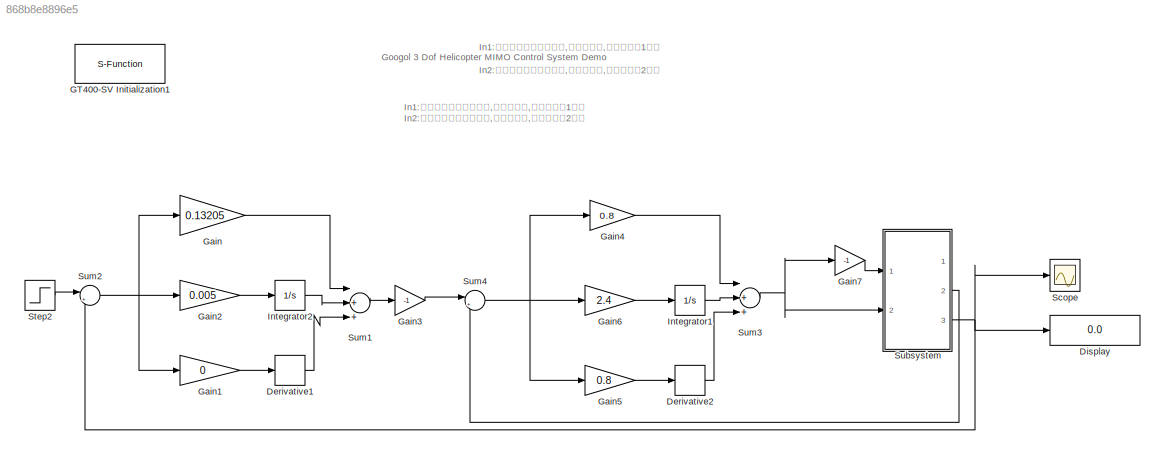
MODEL slx_868b8e8896e5
KIND model
BLOCK [Derivative] Derivative1
BLOCK [Derivative] Derivative2
BLOCK [Display] Display
  Decimation = 1
  Lockdown = off
  Ports = [1]
BLOCK [S-Function] GT400-SV Initialization1
  EnableBusSupport = off
  FunctionName = Initialize
  Parameters = openloop
  Ports = []
  Priority = 0
BLOCK [Gain] Gain
  Gain = 0.13205
  OutDataTypeStr = Inherit: Inherit via internal rule
  ParamDataTypeStr = Inherit: Inherit via internal rule
  SaturateOnIntegerOverflow = off
BLOCK [Gain] Gain1
  Gain = 0
  OutDataTypeStr = Inherit: Inherit via internal rule
  ParamDataTypeStr = Inherit: Inherit via internal rule
  SaturateOnIntegerOverflow = off
BLOCK [Gain] Gain2
  Gain = 0.005
  OutDataTypeStr = Inherit: Inherit via internal rule
  ParamDataTypeStr = Inherit: Inherit via internal rule
  SaturateOnIntegerOverflow = off
BLOCK [Gain] Gain3
  Gain = -1
  OutDataTypeStr = Inherit: Inherit via internal rule
  ParamDataTypeStr = Inherit: Inherit via internal rule
  SaturateOnIntegerOverflow = off
BLOCK [Gain] Gain4
  Gain = 0.8
  OutDataTypeStr = Inherit: Inherit via internal rule
  ParamDataTypeStr = Inherit: Inherit via internal rule
  SaturateOnIntegerOverflow = off
BLOCK [Gain] Gain5
  Gain = 0.8
  OutDataTypeStr = Inherit: Inherit via internal rule
  ParamDataTypeStr = Inherit: Inherit via internal rule
  SaturateOnIntegerOverflow = off
BLOCK [Gain] Gain6
  Gain = 2.4
  OutDataTypeStr = Inherit: Inherit via internal rule
  ParamDataTypeStr = Inherit: Inherit via internal rule
  SaturateOnIntegerOverflow = off
BLOCK [Gain] Gain7
  Gain = -1
  OutDataTypeStr = Inherit: Inherit via internal rule
  ParamDataTypeStr = Inherit: Inherit via internal rule
  SaturateOnIntegerOverflow = off
BLOCK [Integrator] Integrator1
  Ports = [1, 1]
BLOCK [Integrator] Integrator2
  Ports = [1, 1]
BLOCK [Scope] Scope
  DataFormat = StructureWithTime
  Floating = off
  MaxDataPoints = 500000
  NumInputPorts = 1
  Ports = [1]
  SampleTime = 0
  SaveToWorkspace = on
  ShowLegends = off
BLOCK [Step] Step2
  After = 3.14
  SampleTime = 0
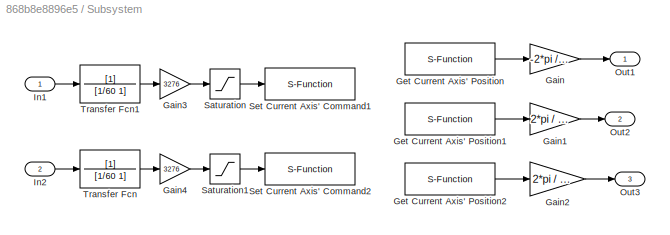
BLOCK [SubSystem] Subsystem
  FunctionWithSeparateData = off
  MaskHideContents = off
  MinAlgLoopOccurrences = off
  Opaque = off
  Ports = [2, 3]
  PropExecContextOutsideSubsystem = off
  RTWSystemCode = Auto
  RequestExecContextInheritance = off
BLOCK [Gain] Subsystem/Gain
  Gain = -2*pi / 2400
BLOCK [Gain] Subsystem/Gain1
  Gain = 2*pi / 2400
BLOCK [Gain] Subsystem/Gain2
  Gain = 2*pi / 2400
BLOCK [Gain] Subsystem/Gain3
  Gain = 3276
  OutDataTypeStr = Inherit: Inherit via internal rule
  ParamDataTypeStr = Inherit: Inherit via internal rule
  SaturateOnIntegerOverflow = off
BLOCK [Gain] Subsystem/Gain4
  Gain = 3276
  OutDataTypeStr = Inherit: Inherit via internal rule
  ParamDataTypeStr = Inherit: Inherit via internal rule
  SaturateOnIntegerOverflow = off
BLOCK [S-Function] Subsystem/Get Current Axis' Position
  EnableBusSupport = off
  FunctionName = GetPos
  Parameters = axis
  Ports = [0, 1]
  Priority = 1
BLOCK [S-Function] Subsystem/Get Current Axis' Position1
  EnableBusSupport = off
  FunctionName = GetPos
  Parameters = axis
  Ports = [0, 1]
  Priority = 1
BLOCK [S-Function] Subsystem/Get Current Axis' Position2
  EnableBusSupport = off
  FunctionName = GetPos
  Parameters = axis
  Ports = [0, 1]
  Priority = 1
BLOCK [Inport] Subsystem/In1
  IconDisplay = Port number
BLOCK [Inport] Subsystem/In2
  IconDisplay = Port number
  Port = 2
BLOCK [Outport] Subsystem/Out1
  IconDisplay = Port number
BLOCK [Outport] Subsystem/Out2
  IconDisplay = Port number
  Port = 2
BLOCK [Outport] Subsystem/Out3
  IconDisplay = Port number
  Port = 3
BLOCK [Saturate] Subsystem/Saturation
  InputPortMap = u0
  LowerLimit = 0
  Ports = [1, 1]
  UpperLimit = 9000
BLOCK [Saturate] Subsystem/Saturation1
  InputPortMap = u0
  LowerLimit = 0
  Ports = [1, 1]
  UpperLimit = 9000
BLOCK [S-Function] Subsystem/Set Current Axis' Command1
  EnableBusSupport = off
  FunctionName = SetMtrCmd
  Parameters = axis
  Ports = [1]
  Priority = 1
BLOCK [S-Function] Subsystem/Set Current Axis' Command2
  EnableBusSupport = off
  FunctionName = SetMtrCmd
  Parameters = axis
  Ports = [1]
  Priority = 1
BLOCK [TransferFcn] Subsystem/Transfer Fcn
  Denominator = [1/60 1]
BLOCK [TransferFcn] Subsystem/Transfer Fcn1
  Denominator = [1/60 1]
BLOCK [Sum] Sum1
  InputSameDT = off
  Inputs = |+++
  OutDataTypeStr = Inherit: Inherit via internal rule
  Ports = [3, 1]
  SaturateOnIntegerOverflow = off
BLOCK [Sum] Sum2
  IconShape = round
  InputSameDT = off
  Inputs = |+-
  OutDataTypeStr = Inherit: Inherit via internal rule
  Ports = [2, 1]
  SaturateOnIntegerOverflow = off
BLOCK [Sum] Sum3
  InputSameDT = off
  Inputs = |+++
  OutDataTypeStr = Inherit: Inherit via internal rule
  Ports = [3, 1]
  SaturateOnIntegerOverflow = off
BLOCK [Sum] Sum4
  IconShape = round
  InputSameDT = off
  Inputs = |+-
  OutDataTypeStr = Inherit: Inherit via internal rule
  Ports = [2, 1]
  SaturateOnIntegerOverflow = off
ANNOTATION (root): Googol 3 Dof Helicopter MIMO Control System Demo
ANNOTATION (root): In1:从机尾往螺旋桨方向看,右侧螺旋桨,对应手册的1号桨 In2:从机尾往螺旋桨方向看,左侧螺旋桨,对应手册的2号桨
LINE Derivative1:1 -> Sum1:3
LINE Derivative2:1 -> Sum3:3
LINE Gain1:1 -> Derivative1:1
LINE Gain2:1 -> Integrator2:1
LINE Gain3:1 -> Sum4:1
LINE Gain4:1 -> Sum3:1
LINE Gain5:1 -> Derivative2:1
LINE Gain6:1 -> Integrator1:1
LINE Gain7:1 -> Subsystem:1
LINE Gain:1 -> Sum1:1
LINE Integrator1:1 -> Sum3:2
LINE Integrator2:1 -> Sum1:2
LINE Step2:1 -> Sum2:1
LINE Subsystem/Gain1:1 -> Subsystem/Out2:1
LINE Subsystem/Gain2:1 -> Subsystem/Out3:1
LINE Subsystem/Gain3:1 -> Subsystem/Saturation:1
LINE Subsystem/Gain4:1 -> Subsystem/Saturation1:1
LINE Subsystem/Gain:1 -> Subsystem/Out1:1
LINE Subsystem/Get Current Axis' Position1:1 -> Subsystem/Gain1:1
LINE Subsystem/Get Current Axis' Position2:1 -> Subsystem/Gain2:1
LINE Subsystem/Get Current Axis' Position:1 -> Subsystem/Gain:1
LINE Subsystem/In1:1 -> Subsystem/Transfer Fcn1:1
LINE Subsystem/In2:1 -> Subsystem/Transfer Fcn:1
LINE Subsystem/Saturation1:1 -> Subsystem/Set Current Axis' Command2:1
LINE Subsystem/Saturation:1 -> Subsystem/Set Current Axis' Command1:1
LINE Subsystem/Transfer Fcn1:1 -> Subsystem/Gain3:1
LINE Subsystem/Transfer Fcn:1 -> Subsystem/Gain4:1
LINE Subsystem:2 -> Sum4:2
NET Subsystem:3 -> Display:1, Scope:1, Sum2:2
LINE Sum1:1 -> Gain3:1
NET Sum2:1 -> Gain1:1, Gain2:1, Gain:1
NET Sum3:1 -> Gain7:1, Subsystem:2
NET Sum4:1 -> Gain4:1, Gain5:1, Gain6:1
note: NET lines group one-source signal fan-out (src -> all destinations, sorted); 1:1 wires keep LINE
